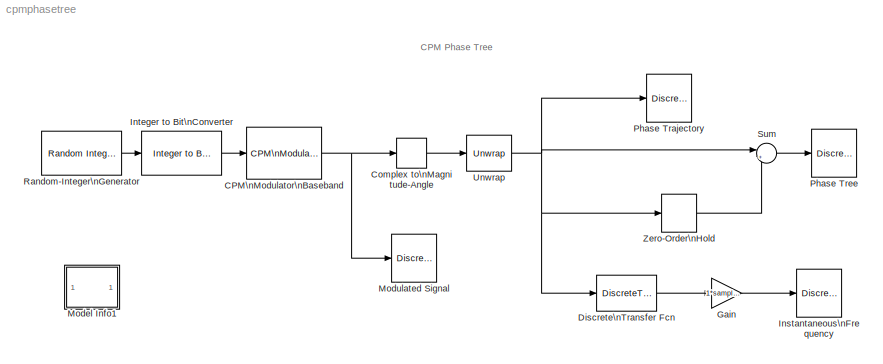
MODEL cpmphasetree
KIND model
CONFIG PreLoadFcn = % Parameters are initialized in the Model Workspace
WORKSPACE source: external: M-Code  (data not in archive)
BLOCK [Reference] CPM\nModulator\nBaseband  REF=commdigbbndcpm2/CPM\nModulator\nBaseband
  BT = 0.5
  Mnum = 2
  Ports = [1, 1]
  ShowPortLabels = on
  SourceBlock = commdigbbndcpm2/CPM\nModulator\nBaseband
  SourceType = CPM Modulator Baseband
  inputType = Bit
  mainLobePulseLength = 1
  mappingType = Binary
  modIdx = .5
  phaseOffset = 0
  preHistory = -1
  pulseLength = 1
  pulseShape = Raised Cosine
  rollOff = 0.2
  samplesPerSymbol = samplespersymbol
BLOCK [ComplexToMagnitudeAngle] Complex to\nMagnitude-Angle
  Output = Angle
  Ports = [1, 1]
BLOCK [DiscreteTransferFcn] Discrete\nTransfer Fcn
  Denominator = [1 0]
  Numerator = [1 -1]
  SampleTime = sampletime/samplespersymbol
BLOCK [Gain] Gain
  Gain = 1*samplespersymbol/(2*pi)
BLOCK [Reference] Instantaneous\nFrequency  REF=commsink2/Discrete-Time\nEye Diagram\nScope
  AxisGrid = on
  FigPos = [576 445 403 350]
  FrameNumber = off
  LineColors = b
  LineStyles = -
  Ports = [1]
  ShowPortLabels = on
  SourceBlock = commsink2/Discrete-Time\nEye Diagram\nScope
  SourceType = Discrete-Time Eye Diagram Scope
  Tag = EyeDiagram
  block_type_ = eye
  dispDiagram = In-phase Only
  dupPoints = on
  fading = on
  figTitle = Eye Diagram
  inphaseLabel = Instantaneous Frequency (MHz)
  numLinesMax = 8
  numNewFrames = 12
  numTraces = 48
  offsetEye = 8
  openScopeAtSimStart = on
  quadratureLabel = Quadrature Amplitude
  render = on
  sampPerSymb = samplespersymbol;
  symbPerTrace = 1
  yMax = 0.545562484339066
  yMin = -0.543093875812644
BLOCK [Reference] Integer to Bit\nConverter  REF=commutil2/Integer to Bit\nConverter
  Ports = [1, 1]
  SourceBlock = commutil2/Integer to Bit\nConverter
  SourceType = Integer to Bit Converter
  nbits = 1
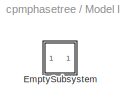
BLOCK [SubSystem] Model Info1
  CopyFcn = slcm CopyBlock;
  DeleteFcn = slcm Cancel;
  EnableExecutionContextPropagation = on
  InitFcn = slcm('UpdateAllCMBlocksInThisModelInit')
  LoadFcn = slcm LoadBlock;
  MaskCallbackString = ||||||||||||||||||||||||||||||
  MaskDescription = This block allows revision control information to be displayed within the model.
  MaskDisplay = text(str2num(LeftAlignmentValue), 0.5, MaskDisplayString, 'HorizontalAlignment', HorizontalTextAlignment)\n
  MaskEnableString = on,on,on,on,on,on,on,on,on,on,on,on,on,on,on,on,on,on,on,on,on,on,on,on,on,on,on,on,on,on,on
  MaskIconFrame = on
  MaskIconOpaque = on
  MaskIconRotate = none
  MaskIconUnits = normalized
  MaskPromptString = InitialSaveTempField|InitialBlockCM|BlockCM|Frame|SaveTempField|DisplayStringWithTags|MaskDisplayString|HorizontalTextAlignment|LeftAlignmentValue|SourceBlockDiagram|TagMaxNumber|CMTag1|CMTag2|CMTag3|CMTag4|CMTag5|CMTag6|CMTag7|CMTag8|CMTag9|CMTag10|CMTag11|CMTag12|CMTag13|CMTag14|CMTag15|CMTag16|CMTag17|CMTag18|CMTag19|CMTag20
  MaskSelfModifiable = on
  MaskStyleString = edit,edit,edit,edit,edit,edit,edit,edit,edit,edit,edit,edit,edit,edit,edit,edit,edit,edit,edit,edit,edit,edit,edit,edit,edit,edit,edit,edit,edit,edit,edit
  MaskTabNameString = ,,,,,,,,,,,,,,,,,,,,,,,,,,,,,,
  MaskToolTipString = on,on,on,on,on,on,on,on,on,on,on,on,on,on,on,on,on,on,on,on,on,on,on,on,on,on,on,on,on,on,on
  MaskTunableValueString = on,on,on,on,on,on,on,on,on,on,on,on,on,on,on,on,on,on,on,on,on,on,on,on,on,on,on,on,on,on,on
  MaskType = CMBlock
  MaskValueString = |none|none|on||Info|Info|Center|0.5|cpmphasetree|20||||||||||||||||||||
  MaskVarAliasString = ,,,,,,,,,,,,,,,,,,,,,,,,,,,,,,
  MaskVariables = InitialSaveTempField=&1;InitialBlockCM=&2;BlockCM=&3;Frame=&4;SaveTempField=&5;DisplayStringWithTags=&6;MaskDisplayString=&7;HorizontalTextAlignment=&8;LeftAlignmentValue=&9;SourceBlockDiagram=&10;TagMaxNumber=@11;CMTag1=&12;CMTag2=&13;CMTag3=&14;CMTag4=&15;CMTag5=&16;CMTag6=&17;CMTag7=&18;CMTag8=&19;CMTag9=&20;CMTag10=&21;CMTag11=&22;CMTag12=&23;CMTag13=&24;CMTag14=&25;CMTag15=&26;CMTag16=&27;CMT...<+45ch>
  MaskVisibilityString = off,off,off,off,off,off,off,off,off,off,off,off,off,off,off,off,off,off,off,off,off,off,off,off,off,off,off,off,off,off,off
  MinAlgLoopOccurrences = off
  NameChangeFcn = slcm Rename;
  OpenFcn = commdemohelp;
  Ports = []
  PostSaveFcn = slcm('UpdateAllCMBlocksInThisModel')
  TreatAsAtomicUnit = off
BLOCK [SubSystem] Model Info1/EmptySubsystem
  EnableExecutionContextPropagation = on
  MinAlgLoopOccurrences = off
  Ports = []
  TreatAsAtomicUnit = off
BLOCK [Reference] Modulated Signal  REF=commsink2/Discrete-Time\nEye Diagram\nScope
  AxisGrid = off
  FigPos = figposition([5 60 30 30]);
  FrameNumber = off
  LineColors = b
  LineStyles = -
  Ports = [1]
  ShowPortLabels = on
  SourceBlock = commsink2/Discrete-Time\nEye Diagram\nScope
  SourceType = Discrete-Time Eye Diagram Scope
  Tag = EyeDiagram
  block_type_ = eye
  dispDiagram = In-phase and Quadrature
  dupPoints = off
  fading = on
  figTitle = Eye Diagram
  inphaseLabel = In-phase Amplitude
  numLinesMax = 8
  numNewFrames = 12
  numTraces = 48
  offsetEye = 8
  openScopeAtSimStart = off
  quadratureLabel = Quadrature Amplitude
  render = on
  sampPerSymb = samplespersymbol
  symbPerTrace = 2
  yMax = 1.105
  yMin = -1.1
BLOCK [Reference] Phase Trajectory  REF=commsink2/Discrete-Time\nEye Diagram\nScope
  AxisGrid = on
  FigPos = [58 52 288 250]
  FrameNumber = off
  LineColors = r
  LineStyles = -
  Ports = [1]
  ShowPortLabels = on
  SourceBlock = commsink2/Discrete-Time\nEye Diagram\nScope
  SourceType = Discrete-Time Eye Diagram Scope
  Tag = EyeDiagram
  block_type_ = eye
  dispDiagram = In-phase Only
  dupPoints = off
  fading = on
  figTitle = Eye Diagram
  inphaseLabel = Phase Trajectory (rad.)
  numLinesMax = 8
  numNewFrames = 12
  numTraces = 48
  offsetEye = 8
  openScopeAtSimStart = off
  quadratureLabel = Quadrature Amplitude
  render = on
  sampPerSymb = samplespersymbol
  symbPerTrace = 1
  yMax = 30
  yMin = -30
BLOCK [Reference] Phase Tree  REF=commsink2/Discrete-Time\nEye Diagram\nScope
  AxisGrid = on
  FigPos = [576 45 346 301]
  FrameNumber = off
  LineColors = m
  LineMarkers = None
  LineStyles = -
  Ports = [1]
  ShowPortLabels = on
  SourceBlock = commsink2/Discrete-Time\nEye Diagram\nScope
  SourceType = Discrete-Time Eye Diagram Scope
  Tag = EyeDiagram
  block_type_ = eye
  dispDiagram = In-phase Only
  dupPoints = off
  fading = on
  figTitle = Eye Diagram
  inphaseLabel = Phase Trajectory (rad.)
  numLinesMax = 8
  numNewFrames = samplespersymbol*(3/2);
  numTraces = 16*3;
  offsetEye = samplespersymbol*(3/2);
  openScopeAtSimStart = on
  quadratureLabel = Quadrature Amplitude
  render = on
  sampPerSymb = samplespersymbol*3;
  symbPerTrace = 1
  yMax = 5.20446546729577
  yMin = -5.18091584979669
BLOCK [Reference] Random-Integer\nGenerator  REF=commrandsrc2/Random Integer\nGenerator
  Ports = [0, 1]
  ShowPortLabels = on
  SourceBlock = commrandsrc2/Random Integer\nGenerator
  SourceType = Random Integer Generator
  Ts = sampletime
  frameBased = off
  mul = 2
  orient = off
  sampPerFrame = 1
  seed = 37
BLOCK [Sum] Sum
  IconShape = round
  Inputs = |+-
  Ports = [2, 1]
BLOCK [Reference] Unwrap  REF=dspsigops/Unwrap
  Ports = [1, 1]
  SourceBlock = dspsigops/Unwrap
  SourceType = Unwrap
  running = off
  tol = pi
BLOCK [ZeroOrderHold] Zero-Order\nHold
  SampleTime = 1*sampletime*3
ANNOTATION (root): CPM Phase Tree
NET CPM\nModulator\nBaseband:1 -> Complex to\nMagnitude-Angle:1, Modulated Signal:1
LINE Complex to\nMagnitude-Angle:1 -> Unwrap:1
LINE Discrete\nTransfer Fcn:1 -> Gain:1
LINE Gain:1 -> Instantaneous\nFrequency:1
LINE Integer to Bit\nConverter:1 -> CPM\nModulator\nBaseband:1
LINE Random-Integer\nGenerator:1 -> Integer to Bit\nConverter:1
LINE Sum:1 -> Phase Tree:1
NET Unwrap:1 -> Discrete\nTransfer Fcn:1, Phase Trajectory:1, Sum:1, Zero-Order\nHold:1
LINE Zero-Order\nHold:1 -> Sum:2
note: NET lines group one-source signal fan-out (src -> all destinations, sorted); 1:1 wires keep LINE
